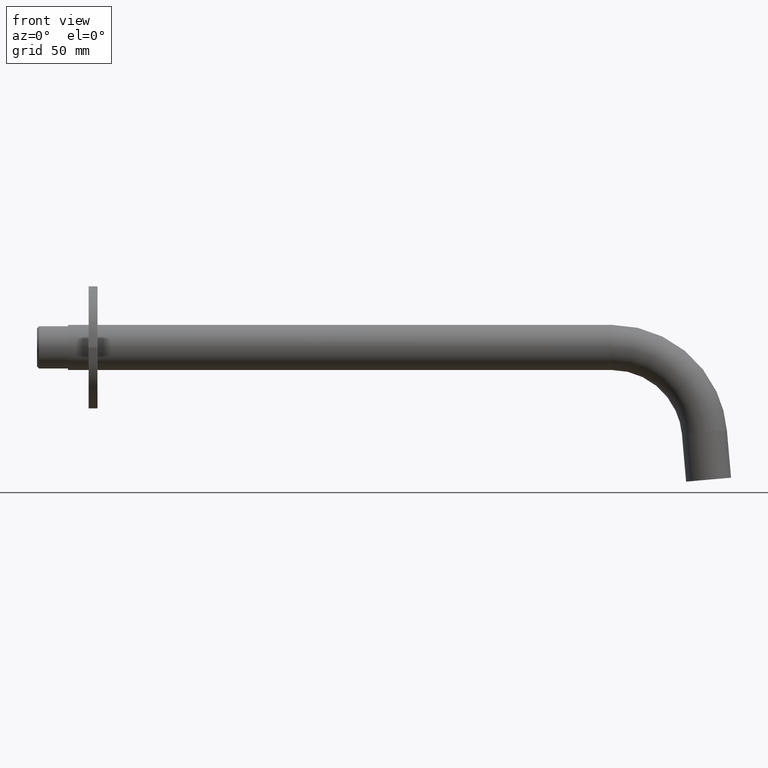
[diagram: clean part render]
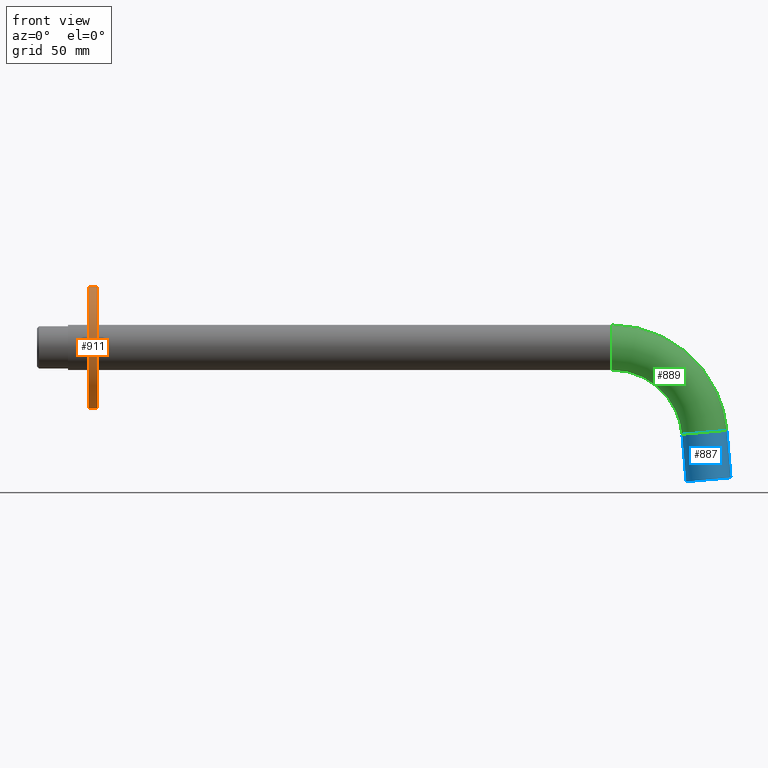
[diagram: same view with three faces highlighted in distinct colors, each labeled with its STEP entity id]
A machine part, front view with three faces highlighted in distinct colors.
Their STEP definitions:

[orange] entity #911 — the highlighted cylindrical surface (bore or boss wall) has radius 29.75 mm, axis along (1, -0, 0).
#156=CYLINDRICAL_SURFACE('',#1014,29.75);
#184=VERTEX_POINT('',#1128);
#201=VERTEX_POINT('',#1179);
#271=CIRCLE('',#979,29.75);
#288=CIRCLE('',#1013,29.75);
#334=EDGE_CURVE('',#184,#184,#271,.T.);
#351=EDGE_CURVE('',#201,#201,#288,.T.);
#487=ORIENTED_EDGE('',*,*,#334,.F.);
#488=ORIENTED_EDGE('',*,*,#351,.T.);
#697=EDGE_LOOP('',(#487));
#698=EDGE_LOOP('',(#488));
#819=FACE_BOUND('',#697,.T.);
#820=FACE_BOUND('',#698,.T.);
#911=ADVANCED_FACE('',(#819,#820),#156,.T.);
#979=AXIS2_PLACEMENT_3D('',#1127,#1398,#1399);
#1013=AXIS2_PLACEMENT_3D('',#1178,#1455,#1456);
#1014=AXIS2_PLACEMENT_3D('',#1180,#1457,#1458);
#1127=CARTESIAN_POINT('',(-84.7261744394857,-15.2,45.544166336812));
#1128=CARTESIAN_POINT('',(-84.7261744394857,-44.95,45.544166336812));
#1178=CARTESIAN_POINT('',(-88.7261744394856,-15.2,45.544166336812));
#1179=CARTESIAN_POINT('',(-88.7261744394856,-44.95,45.544166336812));
#1180=CARTESIAN_POINT('',(-86.7261744394856,-15.2,45.544166336812));
#1398=DIRECTION('',(1.,-6.12303176911189E-017,6.12303176911189E-017));
#1399=DIRECTION('',(-1.82160195131079E-015,-29.75,0.));
#1455=DIRECTION('',(1.,-6.12303176911189E-017,6.12303176911189E-017));
#1456=DIRECTION('',(-1.82160195131079E-015,-29.75,0.));
#1457=DIRECTION('',(1.,-6.12303176911189E-017,6.12303176911189E-017));
#1458=DIRECTION('',(-1.82160195131079E-015,-29.75,0.));

[blue] entity #887 — the highlighted cylindrical surface (bore or boss wall) has radius 11 mm, axis along (0.0872, 0, -0.9962).
#147=CYLINDRICAL_SURFACE('',#967,11.);
#179=VERTEX_POINT('',#1112);
#180=VERTEX_POINT('',#1114);
#266=CIRCLE('',#968,11.);
#267=CIRCLE('',#969,11.);
#329=EDGE_CURVE('',#179,#179,#266,.T.);
#330=EDGE_CURVE('',#180,#180,#267,.T.);
#439=ORIENTED_EDGE('',*,*,#329,.T.);
#440=ORIENTED_EDGE('',*,*,#330,.F.);
#649=EDGE_LOOP('',(#439));
#650=EDGE_LOOP('',(#440));
#771=FACE_BOUND('',#649,.T.);
#772=FACE_BOUND('',#650,.T.);
#887=ADVANCED_FACE('',(#771,#772),#147,.T.);
#967=AXIS2_PLACEMENT_3D('',#1110,#1378,#1379);
#968=AXIS2_PLACEMENT_3D('',#1111,#1380,#1381);
#969=AXIS2_PLACEMENT_3D('',#1113,#1382,#1383);
#1110=CARTESIAN_POINT('',(209.268409678184,-15.2,4.46617476046336));
#1111=CARTESIAN_POINT('',(211.273825560502,-15.2,-18.4558336631884));
#1112=CARTESIAN_POINT('',(211.273825560502,-4.19999999999981,-18.4558336631884));
#1113=CARTESIAN_POINT('',(209.268409678184,-15.2,4.46617476046336));
#1114=CARTESIAN_POINT('',(209.268409678184,-4.19999999999981,4.46617476046335));
#1378=DIRECTION('',(0.0871557427477642,0.,-0.996194698091736));
#1379=DIRECTION('',(0.,11.,0.));
#1380=DIRECTION('',(-0.0871557427478071,0.,0.996194698091733));
#1381=DIRECTION('',(0.,11.,0.));
#1382=DIRECTION('',(-0.0871557427478071,0.,0.996194698091733));
#1383=DIRECTION('',(0.,11.,0.));

[green] entity #889 — the highlighted toroidal blend (fillet) surface has major radius 45 mm and minor (blend) radius 11 mm.
#103=TOROIDAL_SURFACE('',#972,45.,11.);
#180=VERTEX_POINT('',#1114);
#182=VERTEX_POINT('',#1120);
#267=CIRCLE('',#969,11.);
#269=CIRCLE('',#973,11.);
#330=EDGE_CURVE('',#180,#180,#267,.T.);
#332=EDGE_CURVE('',#182,#182,#269,.T.);
#443=ORIENTED_EDGE('',*,*,#330,.T.);
#444=ORIENTED_EDGE('',*,*,#332,.F.);
#653=EDGE_LOOP('',(#443));
#654=EDGE_LOOP('',(#444));
#775=FACE_BOUND('',#653,.T.);
#776=FACE_BOUND('',#654,.T.);
#889=ADVANCED_FACE('',(#775,#776),#103,.T.);
#969=AXIS2_PLACEMENT_3D('',#1113,#1382,#1383);
#972=AXIS2_PLACEMENT_3D('',#1118,#1387,$);
#973=AXIS2_PLACEMENT_3D('',#1119,#1388,#1389);
#1113=CARTESIAN_POINT('',(209.268409678184,-15.2,4.46617476046336));
#1114=CARTESIAN_POINT('',(209.268409678184,-4.19999999999981,4.46617476046335));
#1118=CARTESIAN_POINT('',(164.439648264056,-15.2,0.544166336812054));
#1119=CARTESIAN_POINT('',(164.439648264056,-15.2,45.5441663368121));
#1120=CARTESIAN_POINT('',(164.439648264056,-4.19999999999981,45.5441663368121));
#1382=DIRECTION('',(-0.0871557427478071,0.,0.996194698091733));
#1383=DIRECTION('',(0.,11.,0.));
#1387=DIRECTION('',(0.,1.,0.));
#1388=DIRECTION('',(-1.,0.,0.));
#1389=DIRECTION('',(0.,11.,0.));